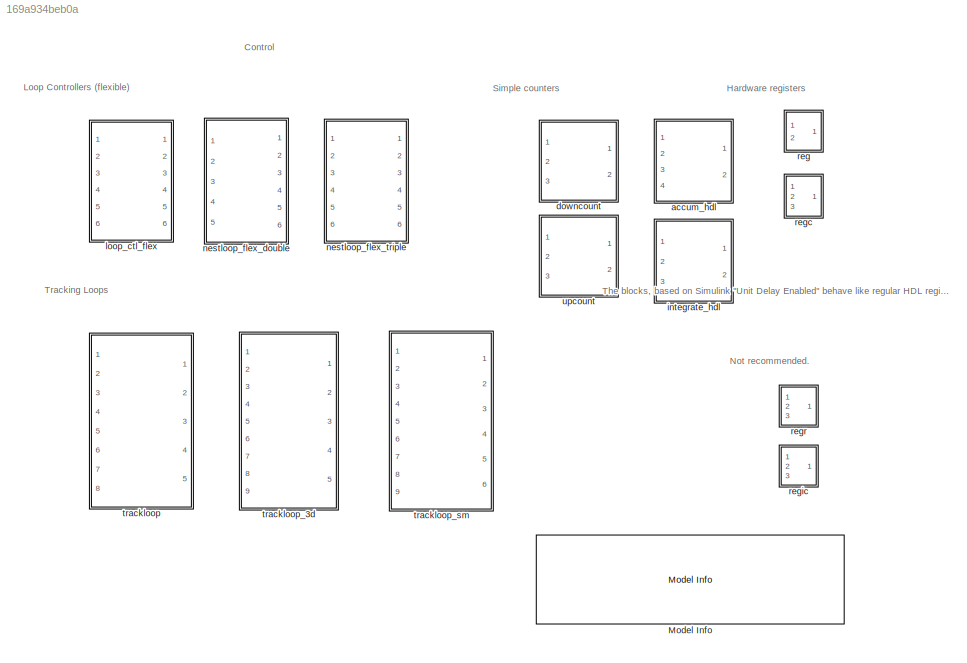
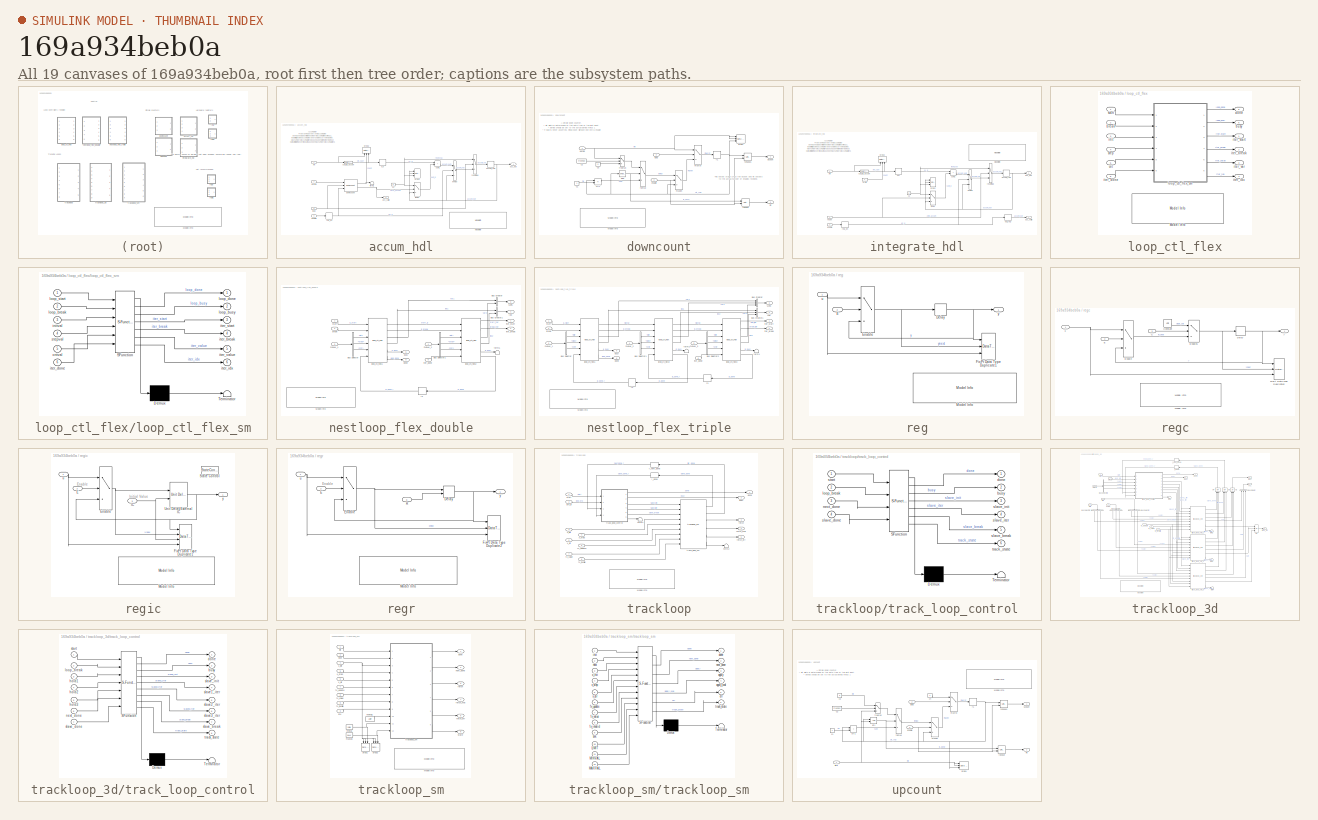
[diagram: thumbnail index - all 19 canvases of the model, root first then tree order]
MODEL slx_169a934beb0a
KIND library
CONFIG AbsTol = auto
CONFIG EnableMultiTasking = on
CONFIG FixedStep = auto
CONFIG MaxStep = auto
CONFIG MinStep = auto
CONFIG RelTol = 1e-3
CONFIG SampleTimeConstraint = Unconstrained
CONFIG SolverName = ode45
CONFIG StartTime = 0.0
CONFIG StopTime = 10.0
BLOCK [Reference] Model Info  REF=simulink/Model-Wide
Utilities/Model Info
  Ports = []
  SourceBlock = simulink/Model-Wide\nUtilities/Model Info
  SourceProductBaseCode = SL
  SourceType = CMBlock
BLOCK [SubSystem] accum_hdl
  Ports = [4, 2]
  RequestExecContextInheritance = off
BLOCK [Reference] accum_hdl/Model Info  REF=simulink/Model-Wide
Utilities/Model Info
  Ports = []
  SourceBlock = simulink/Model-Wide\nUtilities/Model Info
  SourceProductBaseCode = SL
  SourceType = CMBlock
BLOCK [Outport] accum_hdl/acc_out
BLOCK [Outport] accum_hdl/acc_valid
  Port = 2
BLOCK [Delay] accum_hdl/accum_reg
  DelayLength = 1
  InitialCondition = 0
  InputPortMap = u0
  Ports = [1, 1]
BLOCK [Constant] accum_hdl/c2
  OutDataTypeStr = Inherit: Inherit via back propagation
  SampleTime = -1
  Value = 0
BLOCK [DataTypeConversion] accum_hdl/cast_to_accum
  RndMeth = Floor
  SaturateOnIntegerOverflow = off
BLOCK [Reference] accum_hdl/downcount  REF=$bdroot/downcount
  Ports = [3, 2]
  SourceBlock = $bdroot/downcount
  SourceType = A simple down counter.
BLOCK [Inport] accum_hdl/enable
  Port = 4
BLOCK [Switch] accum_hdl/enmux
  Criteria = u2 ~= 0
  InputSameDT = off
  SaturateOnIntegerOverflow = off
BLOCK [Switch] accum_hdl/fbmux
  Criteria = u2 ~= 0
  InputSameDT = off
  SaturateOnIntegerOverflow = off
BLOCK [Inport] accum_hdl/load
  Port = 3
BLOCK [Inport] accum_hdl/period
  Port = 2
BLOCK [Reference] accum_hdl/prop1  REF=simulink/Signal
Attributes/Data Type
Propagation
  Ports = [3]
  SourceBlock = simulink/Signal\nAttributes/Data Type\nPropagation
  SourceProductBaseCode = SL
  SourceType = Data Type Propagation
BLOCK [Reference] accum_hdl/prop2  REF=simulink/Signal
Attributes/Data Type
Propagation
  NameLocation = right
  Ports = [3]
  SourceBlock = simulink/Signal\nAttributes/Data Type\nPropagation
  SourceProductBaseCode = SL
  SourceType = Data Type Propagation
BLOCK [Delay] accum_hdl/reg_en
  DelayLength = 1
  InitialCondition = 0
  InputPortMap = u0
  Ports = [1, 1]
BLOCK [Switch] accum_hdl/resetmux
  Criteria = u2 ~= 0
  InputSameDT = off
  SaturateOnIntegerOverflow = off
BLOCK [Sum] accum_hdl/sum1
  AccumDataTypeStr = Inherit: Same as first input
  IconShape = rectangular
  OutDataTypeStr = Inherit: Same as first input
  Ports = [2, 1]
BLOCK [Terminator] accum_hdl/term1
BLOCK [Delay] accum_hdl/x1r
  DelayLength = 1
  InitialCondition = 0
  InputPortMap = u0
  Ports = [1, 1]
BLOCK [Inport] accum_hdl/xin
BLOCK [SubSystem] downcount
  Ports = [3, 2]
  RequestExecContextInheritance = off
BLOCK [Reference] downcount/Model Info  REF=simulink/Model-Wide
Utilities/Model Info
  Ports = []
  SourceBlock = simulink/Model-Wide\nUtilities/Model Info
  SourceProductBaseCode = SL
  SourceType = CMBlock
BLOCK [Constant] downcount/c1
  OutDataTypeStr = Inherit: Inherit via back propagation
  SampleTime = -1
BLOCK [Constant] downcount/c2
  OutDataTypeStr = boolean
  SampleTime = -1
  Value = FreeRun
BLOCK [Constant] downcount/c3
  OutDataTypeStr = Inherit: Inherit via back propagation
  SampleTime = -1
  Value = 0
BLOCK [Sum] downcount/ctr1
  AccumDataTypeStr = Inherit: Same as first input
  IconShape = rectangular
  Inputs = +-
  OutDataTypeStr = Inherit: Same as first input
  Ports = [2, 1]
BLOCK [Outport] downcount/dcount
BLOCK [Inport] downcount/enable
  OutDataTypeStr = boolean
  Port = 3
BLOCK [Reference] downcount/eq0  REF=simulink/Logic and Bit
Operations/Compare
To Constant
  Ports = [1, 1]
  SourceBlock = simulink/Logic and Bit\nOperations/Compare\nTo Constant
  SourceProductBaseCode = SL
  SourceType = Compare To Constant
BLOCK [Switch] downcount/fbmux
  Criteria = u2 ~= 0
  InputSameDT = off
  SaturateOnIntegerOverflow = off
BLOCK [Switch] downcount/freerun
  Criteria = u2 ~= 0
  InputSameDT = off
  SaturateOnIntegerOverflow = off
BLOCK [Outport] downcount/hit
  Port = 2
BLOCK [Inport] downcount/load
  OutDataTypeStr = boolean
  Port = 2
BLOCK [Switch] downcount/muxen
  Criteria = u2 ~= 0
  InputSameDT = off
  SaturateOnIntegerOverflow = off
BLOCK [Switch] downcount/muxrst
  Criteria = u2 ~= 0
  InputSameDT = off
  SaturateOnIntegerOverflow = off
BLOCK [Inport] downcount/period
BLOCK [Reference] downcount/prop1  REF=simulink/Signal
Attributes/Data Type
Propagation
  Ports = [3]
  SourceBlock = simulink/Signal\nAttributes/Data Type\nPropagation
  SourceProductBaseCode = SL
  SourceType = Data Type Propagation
BLOCK [Delay] downcount/r1
  DelayLength = 1
  InitialCondition = 0
  InputPortMap = u0
  Ports = [1, 1]
BLOCK [Reference] downcount/rphase  REF=simulink_need_slupdate/Unit Delay
Enabled
  Ports = [2, 1]
  SourceBlock = simulink_need_slupdate/Unit Delay\nEnabled
  SourceProductBaseCode = SL
  SourceType = Unit Delay Enabled
BLOCK [Reference] downcount/rphase1  REF=simulink_need_slupdate/Unit Delay
Enabled
  Ports = [2, 1]
  SourceBlock = simulink_need_slupdate/Unit Delay\nEnabled
  SourceProductBaseCode = SL
  SourceType = Unit Delay Enabled
BLOCK [SubSystem] integrate_hdl
  Ports = [3, 2]
  RequestExecContextInheritance = off
BLOCK [Reference] integrate_hdl/Model Info  REF=simulink/Model-Wide
Utilities/Model Info
  Ports = []
  SourceBlock = simulink/Model-Wide\nUtilities/Model Info
  SourceProductBaseCode = SL
  SourceType = CMBlock
BLOCK [Outport] integrate_hdl/acc_out
BLOCK [Outport] integrate_hdl/acc_valid
  Port = 2
BLOCK [Delay] integrate_hdl/accum_reg
  DelayLength = 1
  InitialCondition = 0
  InputPortMap = u0
  Ports = [1, 1]
BLOCK [Constant] integrate_hdl/c2
  OutDataTypeStr = Inherit: Inherit via back propagation
  SampleTime = -1
  Value = 0
BLOCK [DataTypeConversion] integrate_hdl/cast_to_accum
  RndMeth = Floor
  SaturateOnIntegerOverflow = off
BLOCK [Inport] integrate_hdl/enable
  Port = 3
BLOCK [Switch] integrate_hdl/enmux
  Criteria = u2 ~= 0
  InputSameDT = off
  SaturateOnIntegerOverflow = off
BLOCK [Switch] integrate_hdl/fbmux
  Criteria = u2 ~= 0
  InputSameDT = off
  SaturateOnIntegerOverflow = off
BLOCK [Delay] integrate_hdl/out_reg
  DelayLength = 1
  InitialCondition = 0
  InputPortMap = u0
  Ports = [1, 1]
BLOCK [Reference] integrate_hdl/prop1  REF=simulink/Signal
Attributes/Data Type
Propagation
  Ports = [3]
  SourceBlock = simulink/Signal\nAttributes/Data Type\nPropagation
  SourceProductBaseCode = SL
  SourceType = Data Type Propagation
BLOCK [Reference] integrate_hdl/prop2  REF=simulink/Signal
Attributes/Data Type
Propagation
  NameLocation = right
  Ports = [3]
  SourceBlock = simulink/Signal\nAttributes/Data Type\nPropagation
  SourceProductBaseCode = SL
  SourceType = Data Type Propagation
BLOCK [Constant] integrate_hdl/proto
  OutDataTypeStr = fixdt(0,bit_growth,0)
  SampleTime = -1
BLOCK [Delay] integrate_hdl/reg_en
  DelayLength = 1
  InitialCondition = 0
  InputPortMap = u0
  Ports = [1, 1]
BLOCK [Inport] integrate_hdl/reset
  Port = 2
BLOCK [Switch] integrate_hdl/resetmux
  Criteria = u2 ~= 0
  InputSameDT = off
  SaturateOnIntegerOverflow = off
BLOCK [Sum] integrate_hdl/sum1
  AccumDataTypeStr = Inherit: Same as first input
  IconShape = rectangular
  OutDataTypeStr = Inherit: Same as first input
  Ports = [2, 1]
BLOCK [Delay] integrate_hdl/x1r
  DelayLength = 1
  InitialCondition = 0
  InputPortMap = u0
  Ports = [1, 1]
BLOCK [Inport] integrate_hdl/xin
BLOCK [SubSystem] loop_ctl_flex
  Ports = [6, 6]
  RequestExecContextInheritance = off
BLOCK [Reference] loop_ctl_flex/Model Info  REF=simulink/Model-Wide
Utilities/Model Info
  Ports = []
  SourceBlock = simulink/Model-Wide\nUtilities/Model Info
  SourceProductBaseCode = SL
  SourceType = CMBlock
BLOCK [Inport] loop_ctl_flex/break
  Port = 2
BLOCK [Outport] loop_ctl_flex/busy
  Port = 5
BLOCK [Inport] loop_ctl_flex/cnt
  Port = 5
BLOCK [Outport] loop_ctl_flex/done
  Port = 6
BLOCK [Inport] loop_ctl_flex/init
  Port = 3
BLOCK [Outport] loop_ctl_flex/iter_break
  Port = 2
BLOCK [Inport] loop_ctl_flex/iter_done
  Port = 6
BLOCK [Outport] loop_ctl_flex/iter_idx
  Port = 4
BLOCK [Outport] loop_ctl_flex/iter_start
BLOCK [Outport] loop_ctl_flex/iter_var
  Port = 3
BLOCK [SubSystem] loop_ctl_flex/loop_ctl_flex_sm
  ErrorFcn = Stateflow.Translate.translate
  PermitHierarchicalResolution = ExplicitOnly
  Ports = [6, 6]
  RequestExecContextInheritance = off
  SFBlockType = MATLAB Function
  TreatAsAtomicUnit = on
BLOCK [Demux] loop_ctl_flex/loop_ctl_flex_sm/ Demux 
  Outputs = 1
  Ports = [1, 1]
BLOCK [S-Function] loop_ctl_flex/loop_ctl_flex_sm/ SFunction 
  EnableBusSupport = off
  FunctionName = sf_sfun
  PortCounts = [6 7]
  Ports = [6, 7]
  SFcnIsStateOwnerBlock = off
  SFunctionDeploymentMode = off
  Tag = Stateflow S-Function 2
BLOCK [Terminator] loop_ctl_flex/loop_ctl_flex_sm/ Terminator 
BLOCK [Inport] loop_ctl_flex/loop_ctl_flex_sm/cntval
  Port = 5
BLOCK [Inport] loop_ctl_flex/loop_ctl_flex_sm/initval
  Port = 3
BLOCK [Outport] loop_ctl_flex/loop_ctl_flex_sm/iter_break
  Port = 4
BLOCK [Inport] loop_ctl_flex/loop_ctl_flex_sm/iter_done
  Port = 6
BLOCK [Outport] loop_ctl_flex/loop_ctl_flex_sm/iter_idx
  Port = 6
BLOCK [Outport] loop_ctl_flex/loop_ctl_flex_sm/iter_start
  Port = 3
BLOCK [Outport] loop_ctl_flex/loop_ctl_flex_sm/iter_value
  Port = 5
BLOCK [Inport] loop_ctl_flex/loop_ctl_flex_sm/loop_break
  Port = 2
BLOCK [Outport] loop_ctl_flex/loop_ctl_flex_sm/loop_busy
  Port = 2
BLOCK [Outport] loop_ctl_flex/loop_ctl_flex_sm/loop_done
BLOCK [Inport] loop_ctl_flex/loop_ctl_flex_sm/loop_start
BLOCK [Inport] loop_ctl_flex/loop_ctl_flex_sm/stepval
  Port = 4
BLOCK [Inport] loop_ctl_flex/start
BLOCK [Inport] loop_ctl_flex/step
  Port = 4
BLOCK [SubSystem] nestloop_flex_double
  Ports = [5, 6]
  RequestExecContextInheritance = off
BLOCK [BusCreator] nestloop_flex_double/Bus Creator
  DisplayOption = bar
  InheritFromInputs = on
  Inputs = 2
  Ports = [2, 1]
BLOCK [BusCreator] nestloop_flex_double/Bus Creator1
  DisplayOption = bar
  InheritFromInputs = on
  Inputs = 2
  Ports = [2, 1]
BLOCK [BusSelector] nestloop_flex_double/Bus Selector
  OutputSignals = init,step,cnt
  Ports = [1, 3]
BLOCK [BusSelector] nestloop_flex_double/Bus Selector1
  OutputSignals = init,step,cnt
  Ports = [1, 3]
BLOCK [Outport] nestloop_flex_double/IDX
  Port = 4
BLOCK [Reference] nestloop_flex_double/Model Info  REF=simulink/Model-Wide
Utilities/Model Info
  Ports = []
  SourceBlock = simulink/Model-Wide\nUtilities/Model Info
  SourceProductBaseCode = SL
  SourceType = CMBlock
BLOCK [Inport] nestloop_flex_double/PARAM_1
  Port = 3
BLOCK [Inport] nestloop_flex_double/PARAM_2
  Port = 4
BLOCK [Outport] nestloop_flex_double/VARS
  Port = 3
BLOCK [Inport] nestloop_flex_double/break
  Port = 2
BLOCK [Outport] nestloop_flex_double/busy
  Port = 5
BLOCK [Outport] nestloop_flex_double/done
  Port = 6
BLOCK [Outport] nestloop_flex_double/iter_break
  Port = 2
BLOCK [Inport] nestloop_flex_double/iter_done
  Port = 5
BLOCK [Outport] nestloop_flex_double/iter_start
BLOCK [Reference] nestloop_flex_double/loop_ctl_flex1  REF=$bdroot/loop_ctl_flex
  Ports = [6, 6]
  SourceBlock = $bdroot/loop_ctl_flex
  SourceType = Flexible Loop Controller
BLOCK [Reference] nestloop_flex_double/loop_ctl_flex2  REF=$bdroot/loop_ctl_flex
  Ports = [6, 6]
  SourceBlock = $bdroot/loop_ctl_flex
  SourceType = Flexible Loop Controller
BLOCK [Delay] nestloop_flex_double/r2
  DelayLength = 1
  InitialCondition = 0
  InputPortMap = u0
  Ports = [1, 1]
BLOCK [Inport] nestloop_flex_double/start
BLOCK [Terminator] nestloop_flex_double/term1
BLOCK [SubSystem] nestloop_flex_triple
  Ports = [6, 6]
  RequestExecContextInheritance = off
BLOCK [BusCreator] nestloop_flex_triple/Bus Creator
  DisplayOption = bar
  InheritFromInputs = on
  Inputs = 3
  Ports = [3, 1]
BLOCK [BusCreator] nestloop_flex_triple/Bus Creator1
  DisplayOption = bar
  InheritFromInputs = on
  Inputs = 3
  Ports = [3, 1]
BLOCK [BusSelector] nestloop_flex_triple/Bus Selector
  OutputSignals = init,step,cnt
  Ports = [1, 3]
BLOCK [BusSelector] nestloop_flex_triple/Bus Selector1
  OutputSignals = init,step,cnt
  Ports = [1, 3]
BLOCK [BusSelector] nestloop_flex_triple/Bus Selector2
  OutputSignals = init,step,cnt
  Ports = [1, 3]
BLOCK [Outport] nestloop_flex_triple/IDX
  Port = 4
BLOCK [Reference] nestloop_flex_triple/Model Info  REF=simulink/Model-Wide
Utilities/Model Info
  Ports = []
  SourceBlock = simulink/Model-Wide\nUtilities/Model Info
  SourceProductBaseCode = SL
  SourceType = CMBlock
BLOCK [Inport] nestloop_flex_triple/PARAM_1
  Port = 3
BLOCK [Inport] nestloop_flex_triple/PARAM_2
  Port = 4
BLOCK [Inport] nestloop_flex_triple/PARAM_3
  Port = 5
BLOCK [Outport] nestloop_flex_triple/VARS
  Port = 3
BLOCK [Inport] nestloop_flex_triple/break
  Port = 2
BLOCK [Outport] nestloop_flex_triple/busy
  Port = 5
BLOCK [Outport] nestloop_flex_triple/done
  Port = 6
BLOCK [Outport] nestloop_flex_triple/iter_break
  Port = 2
BLOCK [Inport] nestloop_flex_triple/iter_done
  Port = 6
BLOCK [Outport] nestloop_flex_triple/iter_start
BLOCK [Reference] nestloop_flex_triple/loop_ctl_flex1  REF=$bdroot/loop_ctl_flex
  Ports = [6, 6]
  SourceBlock = $bdroot/loop_ctl_flex
  SourceType = Flexible Loop Controller
BLOCK [Reference] nestloop_flex_triple/loop_ctl_flex2  REF=$bdroot/loop_ctl_flex
  Ports = [6, 6]
  SourceBlock = $bdroot/loop_ctl_flex
  SourceType = Flexible Loop Controller
BLOCK [Reference] nestloop_flex_triple/loop_ctl_flex3  REF=$bdroot/loop_ctl_flex
  Ports = [6, 6]
  SourceBlock = $bdroot/loop_ctl_flex
  SourceType = Flexible Loop Controller
BLOCK [Delay] nestloop_flex_triple/r2
  DelayLength = 1
  InitialCondition = 0
  InputPortMap = u0
  Ports = [1, 1]
BLOCK [Delay] nestloop_flex_triple/r3
  DelayLength = 1
  InitialCondition = 0
  InputPortMap = u0
  Ports = [1, 1]
BLOCK [Inport] nestloop_flex_triple/start
BLOCK [Terminator] nestloop_flex_triple/term1
BLOCK [Terminator] nestloop_flex_triple/term2
BLOCK [SubSystem] reg
  Ports = [2, 1]
  RequestExecContextInheritance = off
BLOCK [Delay] reg/Delay
  DelayLength = 1
  InitialCondition = vinit
  InputPortMap = u0
  Ports = [1, 1]
  SampleTime = tsamp
BLOCK [Inport] reg/E
  Port = 2
BLOCK [Switch] reg/Enable
  Criteria = u2 ~= 0
  InputSameDT = off
  OutDataTypeStr = Inherit: Inherit via back propagation
  SaturateOnIntegerOverflow = off
  ZeroCross = off
BLOCK [DataTypeDuplicate] reg/FixPt Data Type Duplicate1
  DisableCoverage = on
  NumInputPorts = 3
  Ports = [3]
BLOCK [Reference] reg/Model Info  REF=simulink/Model-Wide
Utilities/Model Info
  Ports = []
  SourceBlock = simulink/Model-Wide\nUtilities/Model Info
  SourceProductBaseCode = SL
  SourceType = CMBlock
BLOCK [Inport] reg/u
BLOCK [Outport] reg/y
BLOCK [SubSystem] regc
  Ports = [3, 1]
  RequestExecContextInheritance = off
BLOCK [Inport] regc/C
  Port = 3
BLOCK [Constant] regc/Constant
  OutDataTypeStr = Inherit: Inherit via back propagation
  SampleTime = tsamp
  Value = vinit
BLOCK [Delay] regc/Delay
  DelayLength = 1
  InitialCondition = vinit
  InputPortMap = u0
  Ports = [1, 1]
  SampleTime = tsamp
BLOCK [Inport] regc/E
  Port = 2
BLOCK [Switch] regc/Enable
  Criteria = u2 ~= 0
  InputSameDT = off
  OutDataTypeStr = Inherit: Inherit via back propagation
  SaturateOnIntegerOverflow = off
  ZeroCross = off
BLOCK [Switch] regc/Enable1
  Criteria = u2 ~= 0
  InputSameDT = off
  OutDataTypeStr = Inherit: Inherit via back propagation
  SaturateOnIntegerOverflow = off
  ZeroCross = off
BLOCK [DataTypeDuplicate] regc/FixPt Data Type Duplicate2
  DisableCoverage = on
  NumInputPorts = 3
  Ports = [3]
BLOCK [Reference] regc/Model Info  REF=simulink/Model-Wide
Utilities/Model Info
  Ports = []
  SourceBlock = simulink/Model-Wide\nUtilities/Model Info
  SourceProductBaseCode = SL
  SourceType = CMBlock
BLOCK [Inport] regc/u
BLOCK [Outport] regc/y
BLOCK [SubSystem] regic
  Ports = [3, 1]
  RequestExecContextInheritance = off
BLOCK [Inport] regic/E
  Port = 2
BLOCK [Switch] regic/Enable
  Criteria = u2 ~= 0
  InputSameDT = off
  OutDataTypeStr = Inherit: Inherit via back propagation
  SaturateOnIntegerOverflow = off
  ZeroCross = off
BLOCK [DataTypeDuplicate] regic/FixPt Data Type Duplicate1
  DisableCoverage = on
  NumInputPorts = 4
  Ports = [4]
BLOCK [Inport] regic/IC
  Port = 3
BLOCK [Reference] regic/Model Info  REF=simulink/Model-Wide
Utilities/Model Info
  Ports = []
  SourceBlock = simulink/Model-Wide\nUtilities/Model Info
  SourceProductBaseCode = SL
  SourceType = CMBlock
BLOCK [StateControl] regic/State Control
  DisableCoverage = on
BLOCK [Reference] regic/Unit Delay External IC  REF=simulink_need_slupdate/Unit Delay
External IC
  Ports = [2, 1]
  SourceBlock = simulink_need_slupdate/Unit Delay\nExternal IC
  SourceProductBaseCode = SL
  SourceType = Unit Delay External Initial Condition
BLOCK [Inport] regic/u
BLOCK [Outport] regic/y
BLOCK [SubSystem] regr
  Ports = [3, 1]
  RequestExecContextInheritance = off
BLOCK [Delay] regr/Delay
  DelayLength = 1
  ExternalReset = Level
  InitialCondition = vinit
  InputPortMap = u0,r5
  Ports = [2, 1]
  SampleTime = tsamp
BLOCK [Inport] regr/E
  Port = 2
BLOCK [Switch] regr/Enable
  Criteria = u2 ~= 0
  InputSameDT = off
  OutDataTypeStr = Inherit: Inherit via back propagation
  SaturateOnIntegerOverflow = off
  ZeroCross = off
BLOCK [DataTypeDuplicate] regr/FixPt Data Type Duplicate2
  DisableCoverage = on
  NumInputPorts = 3
  Ports = [3]
BLOCK [Reference] regr/Model Info  REF=simulink/Model-Wide
Utilities/Model Info
  Ports = []
  SourceBlock = simulink/Model-Wide\nUtilities/Model Info
  SourceProductBaseCode = SL
  SourceType = CMBlock
BLOCK [Inport] regr/R
  Port = 3
BLOCK [Inport] regr/u
BLOCK [Outport] regr/y
BLOCK [SubSystem] trackloop
  Ports = [8, 5]
  RequestExecContextInheritance = off
BLOCK [Reference] trackloop/Model Info  REF=simulink/Model-Wide
Utilities/Model Info
  Ports = []
  SourceBlock = simulink/Model-Wide\nUtilities/Model Info
  SourceProductBaseCode = SL
  SourceType = CMBlock
BLOCK [Inport] trackloop/brk_in
  Port = 2
BLOCK [Outport] trackloop/busy
  Port = 2
BLOCK [Outport] trackloop/done
BLOCK [Outport] trackloop/fetch
  Port = 3
BLOCK [Outport] trackloop/fetch_err
  Port = 5
BLOCK [Outport] trackloop/fetch_xval
  Port = 4
BLOCK [Inport] trackloop/fx_invalid
  Port = 8
BLOCK [Inport] trackloop/fx_update
  Port = 6
BLOCK [Inport] trackloop/fx_value
  Port = 7
BLOCK [Delay] trackloop/r_done
  DelayLength = 1
  InitialCondition = 0
  InputPortMap = u0
  NameLocation = top
  Ports = [1, 1]
BLOCK [Delay] trackloop/r_next_done
  DelayLength = 1
  InitialCondition = 0
  InputPortMap = u0
  NameLocation = top
  Ports = [1, 1]
BLOCK [Inport] trackloop/start
BLOCK [Terminator] trackloop/term1
BLOCK [Terminator] trackloop/term2
BLOCK [SubSystem] trackloop/track_loop_control
  ErrorFcn = Stateflow.Translate.translate
  PermitHierarchicalResolution = ExplicitOnly
  Ports = [4, 6]
  RequestExecContextInheritance = off
  SFBlockType = MATLAB Function
  TreatAsAtomicUnit = on
BLOCK [Demux] trackloop/track_loop_control/ Demux 
  Outputs = 1
  Ports = [1, 1]
BLOCK [S-Function] trackloop/track_loop_control/ SFunction 
  EnableBusSupport = off
  FunctionName = sf_sfun
  PortCounts = [4 7]
  Ports = [4, 7]
  SFcnIsStateOwnerBlock = off
  SFunctionDeploymentMode = off
  Tag = Stateflow S-Function 3
BLOCK [Terminator] trackloop/track_loop_control/ Terminator 
BLOCK [Outport] trackloop/track_loop_control/busy
  Port = 2
BLOCK [Outport] trackloop/track_loop_control/done
BLOCK [Inport] trackloop/track_loop_control/loop_break
  Port = 2
BLOCK [Inport] trackloop/track_loop_control/next_done
  Port = 3
BLOCK [Outport] trackloop/track_loop_control/slave_break
  Port = 5
BLOCK [Inport] trackloop/track_loop_control/slave_done
  Port = 4
BLOCK [Outport] trackloop/track_loop_control/slave_init
  Port = 3
BLOCK [Outport] trackloop/track_loop_control/slave_iter
  Port = 4
BLOCK [Inport] trackloop/track_loop_control/start
BLOCK [Outport] trackloop/track_loop_control/track_state
  Port = 6
BLOCK [Reference] trackloop/track_loop_sm  REF=$bdroot/trackloop_sm
  Ports = [9, 6]
  SourceBlock = $bdroot/trackloop_sm
  SourceType = Tracking Loop State Machine
BLOCK [Inport] trackloop/x_dir
  Port = 5
BLOCK [Inport] trackloop/x_init
  Port = 3
BLOCK [Inport] trackloop/x_step
  Port = 4
BLOCK [SubSystem] trackloop_3d
  Ports = [9, 5]
  RequestExecContextInheritance = off
BLOCK [BusCreator] trackloop_3d/Bus Creator
  DisplayOption = bar
  InheritFromInputs = on
  Inputs = 3
  NameLocation = right
  Ports = [3, 1]
BLOCK [BusSelector] trackloop_3d/Bus Selector
  NameLocation = left
  OutputSignals = var1,var2,var3
  Ports = [1, 3]
BLOCK [BusSelector] trackloop_3d/Bus Selector1
  NameLocation = left
  OutputSignals = var1,var2,var3
  Ports = [1, 3]
BLOCK [BusSelector] trackloop_3d/Bus Selector2
  NameLocation = left
  OutputSignals = var1,var2,var3
  Ports = [1, 3]
BLOCK [BusSelector] trackloop_3d/Bus Selector3
  OutputSignals = var1,var2,var3
  Ports = [1, 3]
BLOCK [Inport] trackloop_3d/DIR
  Port = 5
BLOCK [Inport] trackloop_3d/HOLD
  Port = 6
BLOCK [Inport] trackloop_3d/INIT
  Port = 3
BLOCK [Reference] trackloop_3d/Model Info  REF=simulink/Model-Wide
Utilities/Model Info
  Ports = []
  SourceBlock = simulink/Model-Wide\nUtilities/Model Info
  SourceProductBaseCode = SL
  SourceType = CMBlock
BLOCK [Inport] trackloop_3d/STEP
  Port = 4
BLOCK [Outport] trackloop_3d/VAL
  Port = 4
BLOCK [Inport] trackloop_3d/brk_in
  Port = 2
BLOCK [Outport] trackloop_3d/busy
  Port = 2
BLOCK [Outport] trackloop_3d/done
BLOCK [Outport] trackloop_3d/fetch
  Port = 3
BLOCK [Outport] trackloop_3d/fetch_err
  Port = 5
BLOCK [Inport] trackloop_3d/fx_invalid
  Port = 9
BLOCK [Inport] trackloop_3d/fx_update
  Port = 7
BLOCK [Inport] trackloop_3d/fx_value
  Port = 8
BLOCK [Logic] trackloop_3d/or1
  AllPortsSameDT = off
  IconShape = distinctive
  Inputs = 3
  NameLocation = right
  Operator = OR
  OutDataTypeStr = boolean
  Ports = [3, 1]
BLOCK [Logic] trackloop_3d/or2
  AllPortsSameDT = off
  IconShape = distinctive
  Inputs = 3
  Operator = OR
  OutDataTypeStr = boolean
  Ports = [3, 1]
BLOCK [Logic] trackloop_3d/or3
  AllPortsSameDT = off
  IconShape = distinctive
  Inputs = 3
  NameLocation = right
  Operator = OR
  OutDataTypeStr = boolean
  Ports = [3, 1]
BLOCK [Logic] trackloop_3d/or4
  AllPortsSameDT = off
  IconShape = distinctive
  Inputs = 3
  NameLocation = right
  Operator = OR
  OutDataTypeStr = boolean
  Ports = [3, 1]
BLOCK [Delay] trackloop_3d/r_done
  DelayLength = 1
  InitialCondition = 0
  InputPortMap = u0
  NameLocation = top
  Ports = [1, 1]
BLOCK [Delay] trackloop_3d/r_next_done
  DelayLength = 1
  InitialCondition = 0
  InputPortMap = u0
  NameLocation = top
  Ports = [1, 1]
BLOCK [Inport] trackloop_3d/start
BLOCK [Terminator] trackloop_3d/term1
BLOCK [Terminator] trackloop_3d/term2
BLOCK [Terminator] trackloop_3d/term3
BLOCK [Terminator] trackloop_3d/term4
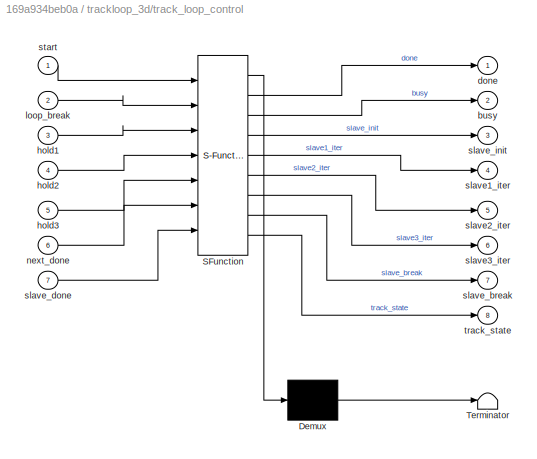
BLOCK [SubSystem] trackloop_3d/track_loop_control
  ErrorFcn = Stateflow.Translate.translate
  PermitHierarchicalResolution = ExplicitOnly
  Ports = [7, 8]
  RequestExecContextInheritance = off
  SFBlockType = MATLAB Function
  TreatAsAtomicUnit = on
BLOCK [Demux] trackloop_3d/track_loop_control/ Demux 
  Outputs = 1
  Ports = [1, 1]
BLOCK [S-Function] trackloop_3d/track_loop_control/ SFunction 
  EnableBusSupport = off
  FunctionName = sf_sfun
  PortCounts = [7 9]
  Ports = [7, 9]
  SFcnIsStateOwnerBlock = off
  SFunctionDeploymentMode = off
  Tag = Stateflow S-Function 14
BLOCK [Terminator] trackloop_3d/track_loop_control/ Terminator 
BLOCK [Outport] trackloop_3d/track_loop_control/busy
  Port = 2
BLOCK [Outport] trackloop_3d/track_loop_control/done
BLOCK [Inport] trackloop_3d/track_loop_control/hold1
  Port = 3
BLOCK [Inport] trackloop_3d/track_loop_control/hold2
  Port = 4
BLOCK [Inport] trackloop_3d/track_loop_control/hold3
  Port = 5
BLOCK [Inport] trackloop_3d/track_loop_control/loop_break
  Port = 2
BLOCK [Inport] trackloop_3d/track_loop_control/next_done
  Port = 6
BLOCK [Outport] trackloop_3d/track_loop_control/slave1_iter
  Port = 4
BLOCK [Outport] trackloop_3d/track_loop_control/slave2_iter
  Port = 5
BLOCK [Outport] trackloop_3d/track_loop_control/slave3_iter
  Port = 6
BLOCK [Outport] trackloop_3d/track_loop_control/slave_break
  Port = 7
BLOCK [Inport] trackloop_3d/track_loop_control/slave_done
  Port = 7
BLOCK [Outport] trackloop_3d/track_loop_control/slave_init
  Port = 3
BLOCK [Inport] trackloop_3d/track_loop_control/start
BLOCK [Outport] trackloop_3d/track_loop_control/track_state
  Port = 8
BLOCK [Reference] trackloop_3d/track_loop_sm_1  REF=$bdroot/trackloop_sm
  Ports = [9, 6]
  SourceBlock = $bdroot/trackloop_sm
  SourceType = Tracking Loop State Machine
BLOCK [Reference] trackloop_3d/track_loop_sm_2  REF=$bdroot/trackloop_sm
  Ports = [9, 6]
  SourceBlock = $bdroot/trackloop_sm
  SourceType = Tracking Loop State Machine
BLOCK [Reference] trackloop_3d/track_loop_sm_3  REF=$bdroot/trackloop_sm
  Ports = [9, 6]
  SourceBlock = $bdroot/trackloop_sm
  SourceType = Tracking Loop State Machine
BLOCK [SubSystem] trackloop_sm
  Ports = [9, 6]
  RequestExecContextInheritance = off
BLOCK [Reference] trackloop_sm/Model Info  REF=simulink/Model-Wide
Utilities/Model Info
  Ports = []
  SourceBlock = simulink/Model-Wide\nUtilities/Model Info
  SourceProductBaseCode = SL
  SourceType = CMBlock
BLOCK [Inport] trackloop_sm/brk
  Port = 3
BLOCK [Outport] trackloop_sm/done
BLOCK [Outport] trackloop_sm/fetch
  Port = 3
BLOCK [Outport] trackloop_sm/fetch_err
  Port = 5
BLOCK [Outport] trackloop_sm/fetch_xval
  Port = 4
BLOCK [Inport] trackloop_sm/fx_invalid
  Port = 9
BLOCK [Inport] trackloop_sm/fx_update
  Port = 7
BLOCK [Inport] trackloop_sm/fx_value
  Port = 8
BLOCK [Inport] trackloop_sm/init
BLOCK [Constant] trackloop_sm/maxval
  OutDataTypeStr = Inherit: Inherit via back propagation
  SampleTime = -1
  Value = XMAX
BLOCK [Constant] trackloop_sm/minval
  OutDataTypeStr = Inherit: Inherit via back propagation
  SampleTime = -1
  Value = XMIN
BLOCK [Constant] trackloop_sm/minval1
  OutDataTypeStr = boolean
  SampleTime = -1
  Value = LIMIT
BLOCK [Inport] trackloop_sm/next
  Port = 2
BLOCK [Outport] trackloop_sm/next_done
  Port = 2
BLOCK [Reference] trackloop_sm/prop1  REF=simulink/Signal
Attributes/Data Type
Propagation
  NameLocation = left
  Ports = [3]
  SourceBlock = simulink/Signal\nAttributes/Data Type\nPropagation
  SourceProductBaseCode = SL
  SourceType = Data Type Propagation
BLOCK [Reference] trackloop_sm/prop2  REF=simulink/Signal
Attributes/Data Type
Propagation
  NameLocation = right
  Ports = [3]
  SourceBlock = simulink/Signal\nAttributes/Data Type\nPropagation
  SourceProductBaseCode = SL
  SourceType = Data Type Propagation
BLOCK [Outport] trackloop_sm/state
  Port = 6
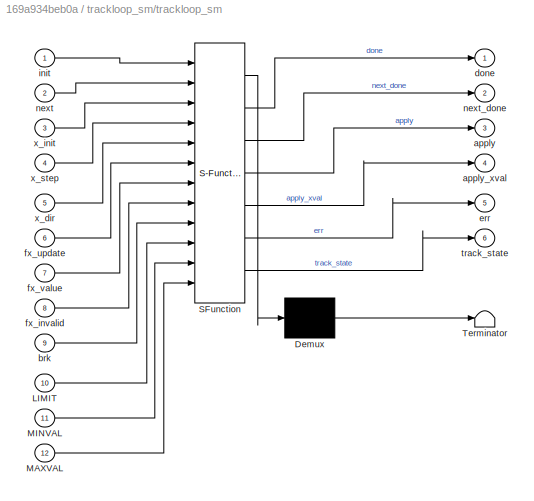
BLOCK [SubSystem] trackloop_sm/trackloop_sm
  ErrorFcn = Stateflow.Translate.translate
  PermitHierarchicalResolution = ExplicitOnly
  Ports = [12, 6]
  RequestExecContextInheritance = off
  SFBlockType = MATLAB Function
  TreatAsAtomicUnit = on
BLOCK [Demux] trackloop_sm/trackloop_sm/ Demux 
  Outputs = 1
  Ports = [1, 1]
BLOCK [S-Function] trackloop_sm/trackloop_sm/ SFunction 
  EnableBusSupport = off
  FunctionName = sf_sfun
  PortCounts = [12 7]
  Ports = [12, 7]
  SFcnIsStateOwnerBlock = off
  SFunctionDeploymentMode = off
  Tag = Stateflow S-Function 1
BLOCK [Terminator] trackloop_sm/trackloop_sm/ Terminator 
BLOCK [Inport] trackloop_sm/trackloop_sm/LIMIT
  Port = 10
BLOCK [Inport] trackloop_sm/trackloop_sm/MAXVAL
  Port = 12
BLOCK [Inport] trackloop_sm/trackloop_sm/MINVAL
  Port = 11
BLOCK [Outport] trackloop_sm/trackloop_sm/apply
  Port = 3
BLOCK [Outport] trackloop_sm/trackloop_sm/apply_xval
  Port = 4
BLOCK [Inport] trackloop_sm/trackloop_sm/brk
  Port = 9
BLOCK [Outport] trackloop_sm/trackloop_sm/done
BLOCK [Outport] trackloop_sm/trackloop_sm/err
  Port = 5
BLOCK [Inport] trackloop_sm/trackloop_sm/fx_invalid
  Port = 8
BLOCK [Inport] trackloop_sm/trackloop_sm/fx_update
  Port = 6
BLOCK [Inport] trackloop_sm/trackloop_sm/fx_value
  Port = 7
BLOCK [Inport] trackloop_sm/trackloop_sm/init
BLOCK [Inport] trackloop_sm/trackloop_sm/next
  Port = 2
BLOCK [Outport] trackloop_sm/trackloop_sm/next_done
  Port = 2
BLOCK [Outport] trackloop_sm/trackloop_sm/track_state
  Port = 6
BLOCK [Inport] trackloop_sm/trackloop_sm/x_dir
  Port = 5
BLOCK [Inport] trackloop_sm/trackloop_sm/x_init
  Port = 3
BLOCK [Inport] trackloop_sm/trackloop_sm/x_step
  Port = 4
BLOCK [Inport] trackloop_sm/x_dir
  Port = 6
BLOCK [Inport] trackloop_sm/x_init
  Port = 4
BLOCK [Inport] trackloop_sm/x_step
  Port = 5
BLOCK [SubSystem] upcount
  Ports = [3, 2]
  RequestExecContextInheritance = off
BLOCK [Reference] upcount/Model Info  REF=simulink/Model-Wide
Utilities/Model Info
  Ports = []
  SourceBlock = simulink/Model-Wide\nUtilities/Model Info
  SourceProductBaseCode = SL
  SourceType = CMBlock
BLOCK [Constant] upcount/c1
  OutDataTypeStr = Inherit: Inherit via back propagation
  SampleTime = -1
BLOCK [Constant] upcount/c2
  OutDataTypeStr = boolean
  SampleTime = -1
  Value = FreeRun
BLOCK [Constant] upcount/c3
  OutDataTypeStr = Inherit: Inherit via back propagation
  SampleTime = -1
  Value = 0
BLOCK [Constant] upcount/c4
  OutDataTypeStr = Inherit: Inherit via back propagation
  SampleTime = -1
BLOCK [Sum] upcount/ctr1
  AccumDataTypeStr = Inherit: Same as first input
  IconShape = rectangular
  OutDataTypeStr = Inherit: Same as first input
  Ports = [2, 1]
BLOCK [Inport] upcount/enable
  OutDataTypeStr = boolean
  Port = 3
BLOCK [Switch] upcount/fbmux
  Criteria = u2 ~= 0
  InputSameDT = off
  SaturateOnIntegerOverflow = off
BLOCK [Switch] upcount/freerun
  Criteria = u2 ~= 0
  InputSameDT = off
  SaturateOnIntegerOverflow = off
BLOCK [RelationalOperator] upcount/gt1
  InputSameDT = off
  OutDataTypeStr = boolean
  Ports = [2, 1]
BLOCK [Outport] upcount/hit
  Port = 2
BLOCK [Inport] upcount/limit
BLOCK [Inport] upcount/load
  OutDataTypeStr = boolean
  Port = 2
BLOCK [Switch] upcount/muxen
  Criteria = u2 ~= 0
  InputSameDT = off
  SaturateOnIntegerOverflow = off
BLOCK [Switch] upcount/muxrst
  Criteria = u2 ~= 0
  InputSameDT = off
  SaturateOnIntegerOverflow = off
BLOCK [Reference] upcount/prop1  REF=simulink/Signal
Attributes/Data Type
Propagation
  Ports = [3]
  SourceBlock = simulink/Signal\nAttributes/Data Type\nPropagation
  SourceProductBaseCode = SL
  SourceType = Data Type Propagation
BLOCK [Delay] upcount/r1
  DelayLength = 1
  InitialCondition = 0
  InputPortMap = u0
  Ports = [1, 1]
BLOCK [Reference] upcount/rphase  REF=simulink_need_slupdate/Unit Delay
Enabled
  Ports = [2, 1]
  SourceBlock = simulink_need_slupdate/Unit Delay\nEnabled
  SourceProductBaseCode = SL
  SourceType = Unit Delay Enabled
BLOCK [Reference] upcount/rphase1  REF=simulink_need_slupdate/Unit Delay
Enabled
  Ports = [2, 1]
  SourceBlock = simulink_need_slupdate/Unit Delay\nEnabled
  SourceProductBaseCode = SL
  SourceType = Unit Delay Enabled
BLOCK [Outport] upcount/ucount
ANNOTATION (root): Control
ANNOTATION (root): Hardware registers
ANNOTATION (root): Loop Controllers (flexible)
ANNOTATION (root): Not recommended.
ANNOTATION (root): Simple counters
ANNOTATION (root): The blocks, based on Simulink "Unit Delay Enabled" behave like regular HDL registers. They should be used only when needed for manual control flow.
ANNOTATION (root): Tracking Loops
ANNOTATION accum_hdl: Accumulator Free running or one-shot accumulator period should be set to the number of accumulations minus 1. load initializes the accumulator and resets the current value to 0. Max number of accumulations is based upon width of period input. Output bit width is overflow safe, based on max number of accumulations
ANNOTATION downcount: A simple down counter. * Bit width is determined by the data type of the limit input. * period should be set to the actual period minus 1 * if load is never asserted, initial count will have one extra enable
ANNOTATION downcount: This output stage sync's the dcount and hit outputs to the actual number of enables received.
ANNOTATION integrate_hdl: Accumulator Free running or one-shot accumulator period should be set to the number of accumulations minus 1. load initializes the accumulator and resets the current value to 0. Max number of accumulations is based upon width of period input. Output bit width is overflow safe, based on max number of accumulations
ANNOTATION regic: Enable
ANNOTATION regic: Initial Value
ANNOTATION regr: Enable
ANNOTATION upcount: A simple down counter. * Bit width is determined by the data type of the limit input. * period should be set to the actual period minus 1
LINE downcount/c1:1 -> downcount/ctr1:2
LINE downcount/c2:1 -> downcount/freerun:2
LINE downcount/c3:1 -> downcount/freerun:3
LINE downcount/ctr1:1 -> downcount/fbmux:3
NET downcount/enable:1 -> downcount/muxen:2, downcount/rphase1:2, downcount/rphase:2
NET downcount/eq0:1 -> downcount/fbmux:2, downcount/rphase:1
LINE downcount/fbmux:1 -> downcount/muxen:1
LINE downcount/freerun:1 -> downcount/fbmux:1
LINE downcount/load:1 -> downcount/muxrst:2
LINE downcount/muxen:1 -> downcount/muxrst:3
LINE downcount/muxrst:1 -> downcount/r1:1
NET downcount/period:1 -> downcount/freerun:1, downcount/muxrst:1, downcount/prop1:1, downcount/prop1:2
NET downcount/r1:1 -> downcount/ctr1:1, downcount/eq0:1, downcount/muxen:3, downcount/prop1:3, downcount/rphase1:1
LINE downcount/rphase1:1 -> downcount/dcount:1
LINE downcount/rphase:1 -> downcount/hit:1
LINE loop_ctl_flex/break:1 -> loop_ctl_flex/loop_ctl_flex_sm:2
LINE loop_ctl_flex/cnt:1 -> loop_ctl_flex/loop_ctl_flex_sm:5
LINE loop_ctl_flex/init:1 -> loop_ctl_flex/loop_ctl_flex_sm:3
LINE loop_ctl_flex/iter_done:1 -> loop_ctl_flex/loop_ctl_flex_sm:6
LINE loop_ctl_flex/loop_ctl_flex_sm:1 -> loop_ctl_flex/done:1
LINE loop_ctl_flex/loop_ctl_flex_sm:2 -> loop_ctl_flex/busy:1
LINE loop_ctl_flex/loop_ctl_flex_sm:3 -> loop_ctl_flex/iter_start:1
LINE loop_ctl_flex/loop_ctl_flex_sm:4 -> loop_ctl_flex/iter_break:1
LINE loop_ctl_flex/loop_ctl_flex_sm:5 -> loop_ctl_flex/iter_var:1
LINE loop_ctl_flex/loop_ctl_flex_sm:6 -> loop_ctl_flex/iter_idx:1
LINE loop_ctl_flex/start:1 -> loop_ctl_flex/loop_ctl_flex_sm:1
LINE loop_ctl_flex/step:1 -> loop_ctl_flex/loop_ctl_flex_sm:4
LINE nestloop_flex_double/Bus Creator1:1 -> nestloop_flex_double/IDX:1
LINE nestloop_flex_double/Bus Creator:1 -> nestloop_flex_double/VARS:1
LINE nestloop_flex_double/Bus Selector1:1 -> nestloop_flex_double/loop_ctl_flex2:3
LINE nestloop_flex_double/Bus Selector1:2 -> nestloop_flex_double/loop_ctl_flex2:4
LINE nestloop_flex_double/Bus Selector1:3 -> nestloop_flex_double/loop_ctl_flex2:5
LINE nestloop_flex_double/Bus Selector:1 -> nestloop_flex_double/loop_ctl_flex1:3
LINE nestloop_flex_double/Bus Selector:2 -> nestloop_flex_double/loop_ctl_flex1:4
LINE nestloop_flex_double/Bus Selector:3 -> nestloop_flex_double/loop_ctl_flex1:5
LINE nestloop_flex_double/PARAM_1:1 -> nestloop_flex_double/Bus Selector:1
LINE nestloop_flex_double/PARAM_2:1 -> nestloop_flex_double/Bus Selector1:1
LINE nestloop_flex_double/break:1 -> nestloop_flex_double/loop_ctl_flex1:2
LINE nestloop_flex_double/iter_done:1 -> nestloop_flex_double/loop_ctl_flex2:6
LINE nestloop_flex_double/loop_ctl_flex1:1 -> nestloop_flex_double/loop_ctl_flex2:1
LINE nestloop_flex_double/loop_ctl_flex1:2 -> nestloop_flex_double/loop_ctl_flex2:2
LINE nestloop_flex_double/loop_ctl_flex1:3 -> nestloop_flex_double/Bus Creator:1
LINE nestloop_flex_double/loop_ctl_flex1:4 -> nestloop_flex_double/Bus Creator1:1
LINE nestloop_flex_double/loop_ctl_flex1:5 -> nestloop_flex_double/busy:1
LINE nestloop_flex_double/loop_ctl_flex1:6 -> nestloop_flex_double/done:1
LINE nestloop_flex_double/loop_ctl_flex2:1 -> nestloop_flex_double/iter_start:1
LINE nestloop_flex_double/loop_ctl_flex2:2 -> nestloop_flex_double/iter_break:1
LINE nestloop_flex_double/loop_ctl_flex2:3 -> nestloop_flex_double/Bus Creator:2
LINE nestloop_flex_double/loop_ctl_flex2:4 -> nestloop_flex_double/Bus Creator1:2
LINE nestloop_flex_double/loop_ctl_flex2:5 -> nestloop_flex_double/term1:1
LINE nestloop_flex_double/loop_ctl_flex2:6 -> nestloop_flex_double/r2:1
LINE nestloop_flex_double/r2:1 -> nestloop_flex_double/loop_ctl_flex1:6
LINE nestloop_flex_double/start:1 -> nestloop_flex_double/loop_ctl_flex1:1
LINE nestloop_flex_triple/Bus Creator1:1 -> nestloop_flex_triple/IDX:1
LINE nestloop_flex_triple/Bus Creator:1 -> nestloop_flex_triple/VARS:1
LINE nestloop_flex_triple/Bus Selector1:1 -> nestloop_flex_triple/loop_ctl_flex2:3
LINE nestloop_flex_triple/Bus Selector1:2 -> nestloop_flex_triple/loop_ctl_flex2:4
LINE nestloop_flex_triple/Bus Selector1:3 -> nestloop_flex_triple/loop_ctl_flex2:5
LINE nestloop_flex_triple/Bus Selector2:1 -> nestloop_flex_triple/loop_ctl_flex3:3
LINE nestloop_flex_triple/Bus Selector2:2 -> nestloop_flex_triple/loop_ctl_flex3:4
LINE nestloop_flex_triple/Bus Selector2:3 -> nestloop_flex_triple/loop_ctl_flex3:5
LINE nestloop_flex_triple/Bus Selector:1 -> nestloop_flex_triple/loop_ctl_flex1:3
LINE nestloop_flex_triple/Bus Selector:2 -> nestloop_flex_triple/loop_ctl_flex1:4
LINE nestloop_flex_triple/Bus Selector:3 -> nestloop_flex_triple/loop_ctl_flex1:5
LINE nestloop_flex_triple/PARAM_1:1 -> nestloop_flex_triple/Bus Selector:1
LINE nestloop_flex_triple/PARAM_2:1 -> nestloop_flex_triple/Bus Selector1:1
LINE nestloop_flex_triple/PARAM_3:1 -> nestloop_flex_triple/Bus Selector2:1
LINE nestloop_flex_triple/break:1 -> nestloop_flex_triple/loop_ctl_flex1:2
LINE nestloop_flex_triple/iter_done:1 -> nestloop_flex_triple/loop_ctl_flex3:6
LINE nestloop_flex_triple/loop_ctl_flex1:1 -> nestloop_flex_triple/loop_ctl_flex2:1
LINE nestloop_flex_triple/loop_ctl_flex1:2 -> nestloop_flex_triple/loop_ctl_flex2:2
LINE nestloop_flex_triple/loop_ctl_flex1:3 -> nestloop_flex_triple/Bus Creator:1
LINE nestloop_flex_triple/loop_ctl_flex1:4 -> nestloop_flex_triple/Bus Creator1:1
LINE nestloop_flex_triple/loop_ctl_flex1:5 -> nestloop_flex_triple/busy:1
LINE nestloop_flex_triple/loop_ctl_flex1:6 -> nestloop_flex_triple/done:1
LINE nestloop_flex_triple/loop_ctl_flex2:1 -> nestloop_flex_triple/loop_ctl_flex3:1
LINE nestloop_flex_triple/loop_ctl_flex2:2 -> nestloop_flex_triple/loop_ctl_flex3:2
LINE nestloop_flex_triple/loop_ctl_flex2:3 -> nestloop_flex_triple/Bus Creator:2
LINE nestloop_flex_triple/loop_ctl_flex2:4 -> nestloop_flex_triple/Bus Creator1:2
LINE nestloop_flex_triple/loop_ctl_flex2:5 -> nestloop_flex_triple/term2:1
LINE nestloop_flex_triple/loop_ctl_flex2:6 -> nestloop_flex_triple/r2:1
LINE nestloop_flex_triple/loop_ctl_flex3:1 -> nestloop_flex_triple/iter_start:1
LINE nestloop_flex_triple/loop_ctl_flex3:2 -> nestloop_flex_triple/iter_break:1
LINE nestloop_flex_triple/loop_ctl_flex3:3 -> nestloop_flex_triple/Bus Creator:3
LINE nestloop_flex_triple/loop_ctl_flex3:4 -> nestloop_flex_triple/Bus Creator1:3
LINE nestloop_flex_triple/loop_ctl_flex3:5 -> nestloop_flex_triple/term1:1
LINE nestloop_flex_triple/loop_ctl_flex3:6 -> nestloop_flex_triple/r3:1
LINE nestloop_flex_triple/r2:1 -> nestloop_flex_triple/loop_ctl_flex1:6
LINE nestloop_flex_triple/r3:1 -> nestloop_flex_triple/loop_ctl_flex2:6
LINE nestloop_flex_triple/start:1 -> nestloop_flex_triple/loop_ctl_flex1:1
NET reg/Delay:1 -> reg/Enable:3, reg/FixPt Data Type Duplicate1:1, reg/y:1
LINE reg/E:1 -> reg/Enable:2
NET reg/Enable:1 -> reg/Delay:1, reg/FixPt Data Type Duplicate1:2
NET reg/u:1 -> reg/Enable:1, reg/FixPt Data Type Duplicate1:3
LINE regc/C:1 -> regc/Enable1:2
LINE regc/Constant:1 -> regc/Enable1:1
NET regc/Delay:1 -> regc/Enable:3, regc/FixPt Data Type Duplicate2:1, regc/y:1
LINE regc/E:1 -> regc/Enable:2
NET regc/Enable1:1 -> regc/Delay:1, regc/FixPt Data Type Duplicate2:2
LINE regc/Enable:1 -> regc/Enable1:3
NET regc/u:1 -> regc/Enable:1, regc/FixPt Data Type Duplicate2:3
LINE regic/E:1 -> regic/Enable:2
NET regic/Enable:1 -> regic/FixPt Data Type Duplicate1:2, regic/Unit Delay External IC:1
NET regic/IC:1 -> regic/FixPt Data Type Duplicate1:3, regic/Unit Delay External IC:2
NET regic/Unit Delay External IC:1 -> regic/Enable:3, regic/FixPt Data Type Duplicate1:1, regic/y:1
NET regic/u:1 -> regic/Enable:1, regic/FixPt Data Type Duplicate1:4
NET regr/Delay:1 -> regr/Enable:3, regr/FixPt Data Type Duplicate2:1, regr/y:1
LINE regr/E:1 -> regr/Enable:2
NET regr/Enable:1 -> regr/Delay:1, regr/FixPt Data Type Duplicate2:2
LINE regr/R:1 -> regr/Delay:2
NET regr/u:1 -> regr/Enable:1, regr/FixPt Data Type Duplicate2:3
LINE trackloop/brk_in:1 -> trackloop/track_loop_control:2
LINE trackloop/fx_invalid:1 -> trackloop/track_loop_sm:9
LINE trackloop/fx_update:1 -> trackloop/track_loop_sm:7
LINE trackloop/fx_value:1 -> trackloop/track_loop_sm:8
LINE trackloop/r_done:1 -> trackloop/track_loop_control:4
LINE trackloop/r_next_done:1 -> trackloop/track_loop_control:3
LINE trackloop/start:1 -> trackloop/track_loop_control:1
LINE trackloop/track_loop_control:1 -> trackloop/done:1
LINE trackloop/track_loop_control:2 -> trackloop/busy:1
LINE trackloop/track_loop_control:3 -> trackloop/track_loop_sm:1
LINE trackloop/track_loop_control:4 -> trackloop/track_loop_sm:2
LINE trackloop/track_loop_control:5 -> trackloop/track_loop_sm:3
LINE trackloop/track_loop_control:6 -> trackloop/term1:1
LINE trackloop/track_loop_sm:1 -> trackloop/r_done:1
LINE trackloop/track_loop_sm:2 -> trackloop/r_next_done:1
LINE trackloop/track_loop_sm:3 -> trackloop/fetch:1
LINE trackloop/track_loop_sm:4 -> trackloop/fetch_xval:1
LINE trackloop/track_loop_sm:5 -> trackloop/fetch_err:1
LINE trackloop/track_loop_sm:6 -> trackloop/term2:1
LINE trackloop/x_dir:1 -> trackloop/track_loop_sm:6
LINE trackloop/x_init:1 -> trackloop/track_loop_sm:4
LINE trackloop/x_step:1 -> trackloop/track_loop_sm:5
LINE trackloop_3d/Bus Creator:1 -> trackloop_3d/VAL:1
LINE trackloop_3d/Bus Selector1:1 -> trackloop_3d/track_loop_sm_1:5
LINE trackloop_3d/Bus Selector1:2 -> trackloop_3d/track_loop_sm_2:5
LINE trackloop_3d/Bus Selector1:3 -> trackloop_3d/track_loop_sm_3:5
LINE trackloop_3d/Bus Selector2:1 -> trackloop_3d/track_loop_sm_1:6
LINE trackloop_3d/Bus Selector2:2 -> trackloop_3d/track_loop_sm_2:6
LINE trackloop_3d/Bus Selector2:3 -> trackloop_3d/track_loop_sm_3:6
LINE trackloop_3d/Bus Selector3:1 -> trackloop_3d/track_loop_control:3
LINE trackloop_3d/Bus Selector3:2 -> trackloop_3d/track_loop_control:4
LINE trackloop_3d/Bus Selector3:3 -> trackloop_3d/track_loop_control:5
LINE trackloop_3d/Bus Selector:1 -> trackloop_3d/track_loop_sm_1:4
LINE trackloop_3d/Bus Selector:2 -> trackloop_3d/track_loop_sm_2:4
LINE trackloop_3d/Bus Selector:3 -> trackloop_3d/track_loop_sm_3:4
LINE trackloop_3d/DIR:1 -> trackloop_3d/Bus Selector2:1
LINE trackloop_3d/HOLD:1 -> trackloop_3d/Bus Selector3:1
LINE trackloop_3d/INIT:1 -> trackloop_3d/Bus Selector:1
LINE trackloop_3d/STEP:1 -> trackloop_3d/Bus Selector1:1
LINE trackloop_3d/brk_in:1 -> trackloop_3d/track_loop_control:2
NET trackloop_3d/fx_invalid:1 -> trackloop_3d/track_loop_sm_1:9, trackloop_3d/track_loop_sm_2:9, trackloop_3d/track_loop_sm_3:9
NET trackloop_3d/fx_update:1 -> trackloop_3d/track_loop_sm_1:7, trackloop_3d/track_loop_sm_2:7, trackloop_3d/track_loop_sm_3:7
NET trackloop_3d/fx_value:1 -> trackloop_3d/track_loop_sm_1:8, trackloop_3d/track_loop_sm_2:8, trackloop_3d/track_loop_sm_3:8
LINE trackloop_3d/or1:1 -> trackloop_3d/fetch:1
LINE trackloop_3d/or2:1 -> trackloop_3d/fetch_err:1
LINE trackloop_3d/or3:1 -> trackloop_3d/r_next_done:1
LINE trackloop_3d/or4:1 -> trackloop_3d/r_done:1
LINE trackloop_3d/r_done:1 -> trackloop_3d/track_loop_control:7
LINE trackloop_3d/r_next_done:1 -> trackloop_3d/track_loop_control:6
LINE trackloop_3d/start:1 -> trackloop_3d/track_loop_control:1
LINE trackloop_3d/track_loop_control:1 -> trackloop_3d/done:1
LINE trackloop_3d/track_loop_control:2 -> trackloop_3d/busy:1
NET trackloop_3d/track_loop_control:3 -> trackloop_3d/track_loop_sm_1:1, trackloop_3d/track_loop_sm_2:1, trackloop_3d/track_loop_sm_3:1
LINE trackloop_3d/track_loop_control:4 -> trackloop_3d/track_loop_sm_1:2
LINE trackloop_3d/track_loop_control:5 -> trackloop_3d/track_loop_sm_2:2
LINE trackloop_3d/track_loop_control:6 -> trackloop_3d/track_loop_sm_3:2
NET trackloop_3d/track_loop_control:7 -> trackloop_3d/track_loop_sm_1:3, trackloop_3d/track_loop_sm_2:3, trackloop_3d/track_loop_sm_3:3
LINE trackloop_3d/track_loop_control:8 -> trackloop_3d/term1:1
LINE trackloop_3d/track_loop_sm_1:1 -> trackloop_3d/or4:1
LINE trackloop_3d/track_loop_sm_1:2 -> trackloop_3d/or3:1
LINE trackloop_3d/track_loop_sm_1:3 -> trackloop_3d/or1:1
LINE trackloop_3d/track_loop_sm_1:4 -> trackloop_3d/Bus Creator:1
LINE trackloop_3d/track_loop_sm_1:5 -> trackloop_3d/or2:1
LINE trackloop_3d/track_loop_sm_1:6 -> trackloop_3d/term2:1
LINE trackloop_3d/track_loop_sm_2:1 -> trackloop_3d/or4:2
LINE trackloop_3d/track_loop_sm_2:2 -> trackloop_3d/or3:2
LINE trackloop_3d/track_loop_sm_2:3 -> trackloop_3d/or1:2
LINE trackloop_3d/track_loop_sm_2:4 -> trackloop_3d/Bus Creator:2
LINE trackloop_3d/track_loop_sm_2:5 -> trackloop_3d/or2:2
LINE trackloop_3d/track_loop_sm_2:6 -> trackloop_3d/term3:1
LINE trackloop_3d/track_loop_sm_3:1 -> trackloop_3d/or4:3
LINE trackloop_3d/track_loop_sm_3:2 -> trackloop_3d/or3:3
LINE trackloop_3d/track_loop_sm_3:3 -> trackloop_3d/or1:3
LINE trackloop_3d/track_loop_sm_3:4 -> trackloop_3d/Bus Creator:3
LINE trackloop_3d/track_loop_sm_3:5 -> trackloop_3d/or2:3
LINE trackloop_3d/track_loop_sm_3:6 -> trackloop_3d/term4:1
LINE trackloop_sm/brk:1 -> trackloop_sm/trackloop_sm:9
LINE trackloop_sm/fx_invalid:1 -> trackloop_sm/trackloop_sm:8
LINE trackloop_sm/fx_update:1 -> trackloop_sm/trackloop_sm:6
LINE trackloop_sm/fx_value:1 -> trackloop_sm/trackloop_sm:7
LINE trackloop_sm/init:1 -> trackloop_sm/trackloop_sm:1
NET trackloop_sm/maxval:1 -> trackloop_sm/prop2:3, trackloop_sm/trackloop_sm:12
LINE trackloop_sm/minval1:1 -> trackloop_sm/trackloop_sm:10
NET trackloop_sm/minval:1 -> trackloop_sm/prop1:3, trackloop_sm/trackloop_sm:11
LINE trackloop_sm/next:1 -> trackloop_sm/trackloop_sm:2
LINE trackloop_sm/trackloop_sm:1 -> trackloop_sm/done:1
LINE trackloop_sm/trackloop_sm:2 -> trackloop_sm/next_done:1
LINE trackloop_sm/trackloop_sm:3 -> trackloop_sm/fetch:1
LINE trackloop_sm/trackloop_sm:4 -> trackloop_sm/fetch_xval:1
LINE trackloop_sm/trackloop_sm:5 -> trackloop_sm/fetch_err:1
LINE trackloop_sm/trackloop_sm:6 -> trackloop_sm/state:1
LINE trackloop_sm/x_dir:1 -> trackloop_sm/trackloop_sm:5
NET trackloop_sm/x_init:1 -> trackloop_sm/prop1:1, trackloop_sm/prop1:2, trackloop_sm/prop2:1, trackloop_sm/prop2:2, trackloop_sm/trackloop_sm:3
LINE trackloop_sm/x_step:1 -> trackloop_sm/trackloop_sm:4
LINE upcount/c1:1 -> upcount/ctr1:2
LINE upcount/c2:1 -> upcount/freerun:2
LINE upcount/c3:1 -> upcount/freerun:1
LINE upcount/c4:1 -> upcount/muxrst:1
LINE upcount/ctr1:1 -> upcount/fbmux:3
NET upcount/enable:1 -> upcount/muxen:2, upcount/rphase1:2, upcount/rphase:2
LINE upcount/fbmux:1 -> upcount/muxen:1
LINE upcount/freerun:1 -> upcount/fbmux:1
NET upcount/gt1:1 -> upcount/fbmux:2, upcount/rphase:1
NET upcount/limit:1 -> upcount/freerun:3, upcount/gt1:2, upcount/prop1:1, upcount/prop1:2
LINE upcount/load:1 -> upcount/muxrst:2
LINE upcount/muxen:1 -> upcount/muxrst:3
LINE upcount/muxrst:1 -> upcount/r1:1
NET upcount/r1:1 -> upcount/ctr1:1, upcount/gt1:1, upcount/muxen:3, upcount/prop1:3, upcount/rphase1:1
LINE upcount/rphase1:1 -> upcount/ucount:1
LINE upcount/rphase:1 -> upcount/hit:1
note: NET lines group one-source signal fan-out (src -> all destinations, sorted); 1:1 wires keep LINE
CHART trackloop_sm/trackloop_sm states=1 transitions=1
  STATE_LABEL 'eML_blk_kernel()'
  STATE_LABEL 'SCRIPT:\nfunction [ done,...\n           next_done,...\n           apply,...\n           apply_xval,...\n           err,...\n           track_state]...\n  = fcn( ...\n           init,...\n           next,...\n           x_init,...\n           x_step,...\n           x_dir,...\n           fx_update,... \n           fx_value,...\n           fx_invalid,...\n           brk,...\n           LIMIT,...\n           MINVAL,.....<+470ch>'
CHART loop_ctl_flex/loop_ctl_flex_sm states=1 transitions=1
  STATE_LABEL 'eML_blk_kernel()'
  STATE_LABEL 'SCRIPT:\nfunction [ loop_done, loop_busy, iter_start, iter_break, iter_value, iter_idx ] = loop_ctl_flex( ...\n           loop_start, loop_break, initval, stepval, cntval, iter_done ...   \n)%#codegen\n         [ loop_done, loop_busy, iter_start, iter_break, iter_value, iter_idx ] = loop_ctl_flex_sm( ...\n           loop_start, loop_break, initval, stepval, cntval, iter_done...   \n);\n'
CHART trackloop/track_loop_control states=1 transitions=1
  STATE_LABEL 'eML_blk_kernel()'
  STATE_LABEL 'SCRIPT:\nfunction [ done,...\n           busy,...\n           slave_init,...\n           slave_iter,...\n           slave_break,...\n           track_state]...\n  = track_loop_control( ...\n           start,...\n           loop_break,...\n           next_done,...\n           slave_done...\n)%#codegen\n% TRACK_LOOP_CONTROL\n%   \n% Description:\n%   A top level loop controller that handles control flow for\n%   the...<+2806ch>'
CHART trackloop_3d/track_loop_control states=1 transitions=1
  STATE_LABEL 'eML_blk_kernel()'
  STATE_LABEL 'SCRIPT:\nfunction [ done,...\n           busy,...\n           slave_init,...\n           slave1_iter,...\n           slave2_iter,...\n           slave3_iter,...\n           slave_break,...\n           track_state]...\n  = trackloop_3d_ctl( ...\n           start,...\n           loop_break,...\n           hold1,...\n           hold2,...\n           hold3,...\n           next_done,...\n           slave_done...\n)%#co...<+404ch>'
CHART  states=0 transitions=0
CHART  states=0 transitions=0
CHART  states=0 transitions=0
CHART  states=0 transitions=0
